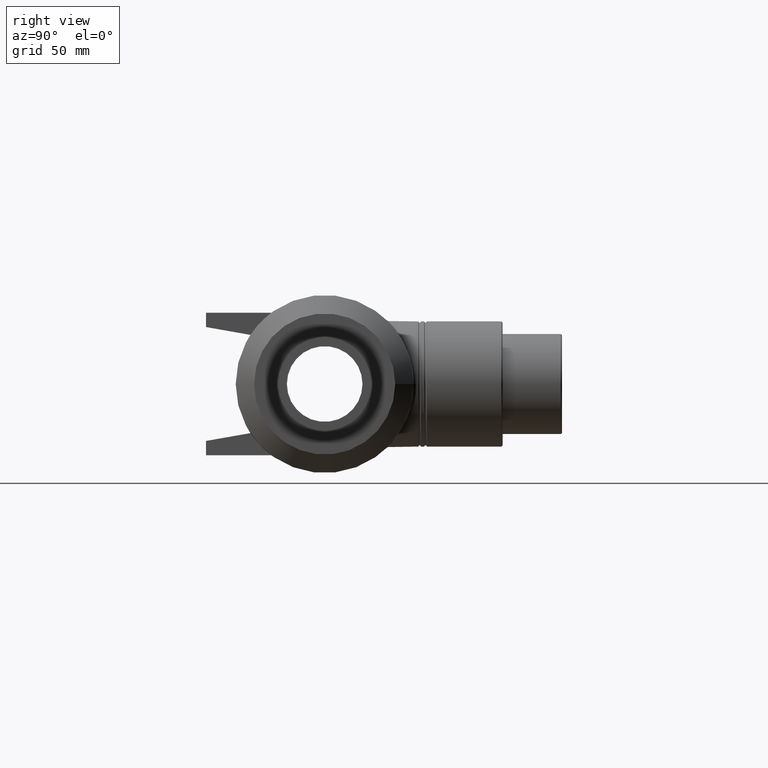
[diagram: clean part render]
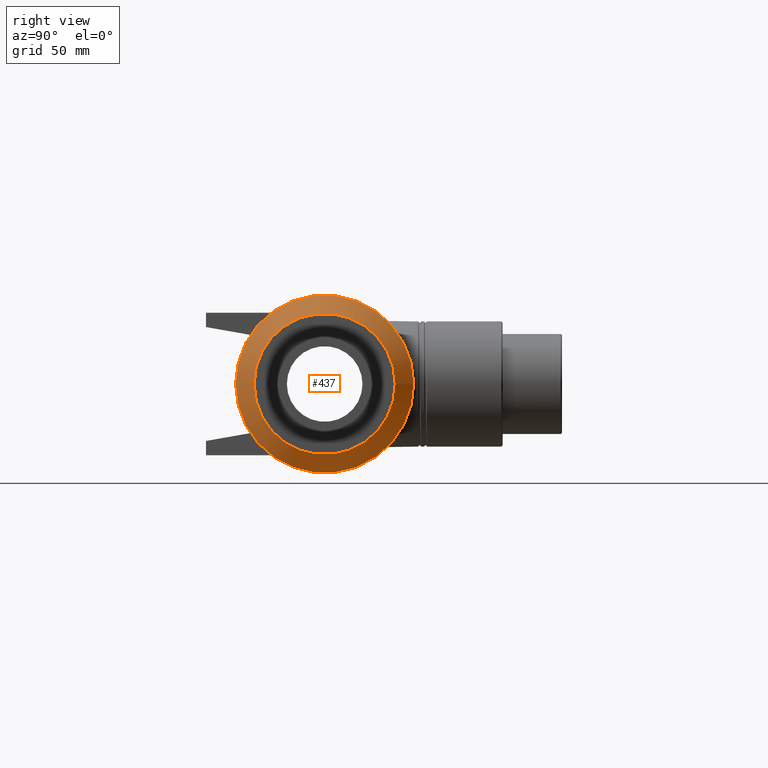
[diagram: same view with one face highlighted and labeled with its STEP entity id]
A machine part, right view. The second image highlights one B-rep face of the part: STEP entity #437.
In plain terms, the highlighted conical surface has half-angle 45 deg.
Its self-contained STEP definition (entity closure, byte-faithful):
#37=CONICAL_SURFACE('',#489,53.79,45.);
#93=FACE_BOUND('',#184,.T.);
#136=FACE_OUTER_BOUND('',#183,.T.);
#183=EDGE_LOOP('',(#394));
#184=EDGE_LOOP('',(#395));
#206=CIRCLE('',#453,60.);
#221=CIRCLE('',#490,47.58);
#233=VERTEX_POINT('',#843);
#260=VERTEX_POINT('',#927);
#273=EDGE_CURVE('',#233,#233,#206,.T.);
#308=EDGE_CURVE('',#260,#260,#221,.T.);
#394=ORIENTED_EDGE('',*,*,#308,.F.);
#395=ORIENTED_EDGE('',*,*,#273,.T.);
#437=ADVANCED_FACE('',(#136,#93),#37,.T.);
#453=AXIS2_PLACEMENT_3D('',#844,#518,#519);
#489=AXIS2_PLACEMENT_3D('',#926,#610,#611);
#490=AXIS2_PLACEMENT_3D('',#928,#612,#613);
#518=DIRECTION('center_axis',(1.,0.,0.));
#519=DIRECTION('ref_axis',(0.,0.,-1.));
#610=DIRECTION('center_axis',(-1.,0.,0.));
#611=DIRECTION('ref_axis',(0.,1.,0.));
#612=DIRECTION('center_axis',(1.,0.,0.));
#613=DIRECTION('ref_axis',(0.,0.,-1.));
#843=CARTESIAN_POINT('',(64.58,60.,0.));
#844=CARTESIAN_POINT('Origin',(64.5800000000001,0.,0.));
#926=CARTESIAN_POINT('Origin',(70.79,0.,0.));
#927=CARTESIAN_POINT('',(77.,47.58,0.));
#928=CARTESIAN_POINT('Origin',(77.,0.,0.));